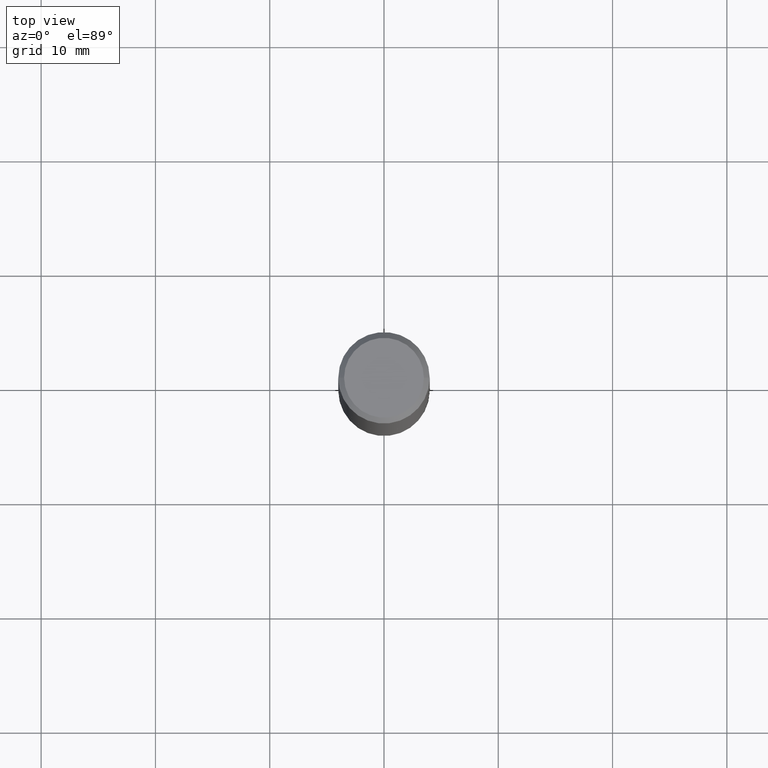
[diagram: clean part render]
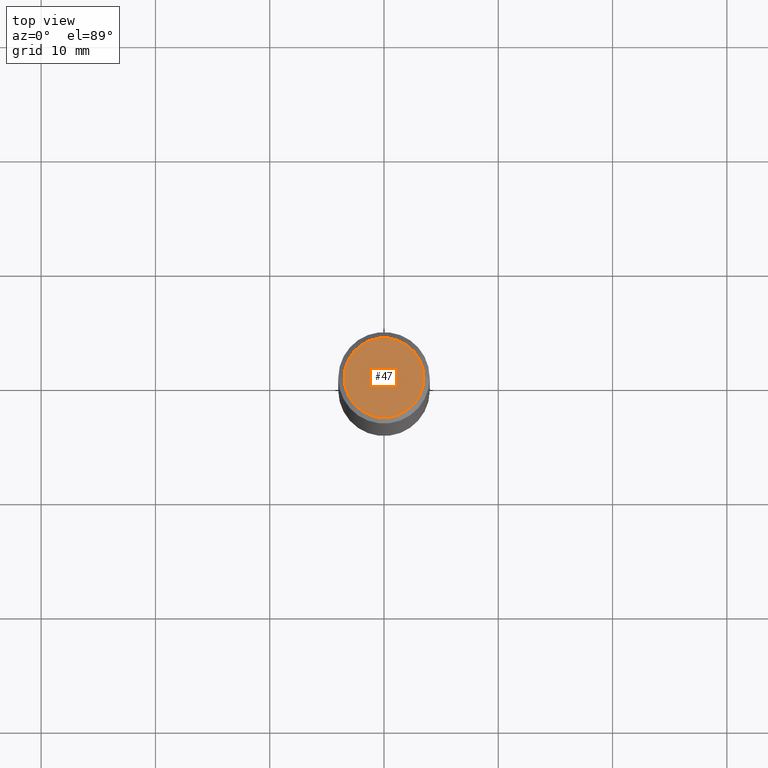
[diagram: same view with one face highlighted and labeled with its STEP entity id]
A machine part, top view. The second image highlights one B-rep face of the part: STEP entity #47.
In plain terms, the highlighted planar face has unit normal (0, -0, -1).
Its self-contained STEP definition (entity closure, byte-faithful):
#8 = EDGE_CURVE ( 'NONE', #208, #77, #256, .T. ) ;
#26 = AXIS2_PLACEMENT_3D ( 'NONE', #320, #286, #173 ) ;
#27 = DIRECTION ( 'NONE',  ( -2.445468806185136597E-29, 3.491481338843145583E-15, 1.000000000000000000 ) ) ;
#34 = CARTESIAN_POINT ( 'NONE',  ( -0.1374999999999998446, 9.950721815702915469E-16, 8.537024980193986277E-18 ) ) ;
#47 = ADVANCED_FACE ( 'NONE', ( #200 ), #203, .F. ) ;
#54 = CARTESIAN_POINT ( 'NONE',  ( -2.087702828670439639E-46, 2.980686340760894400E-32, 8.537024980200822558E-18 ) ) ;
#58 = ORIENTED_EDGE ( 'NONE', *, *, #128, .T. ) ;
#77 = VERTEX_POINT ( 'NONE', #34 ) ;
#103 = AXIS2_PLACEMENT_3D ( 'NONE', #187, #294, #300 ) ;
#128 = EDGE_CURVE ( 'NONE', #77, #208, #280, .T. ) ;
#133 = DIRECTION ( 'NONE',  ( 1.000000000000000000, -6.982962677686265922E-15, 4.876173381029105647E-29 ) ) ;
#173 = DIRECTION ( 'NONE',  ( -1.000000000000000000, 6.982962677686265922E-15, -4.876176775795935793E-29 ) ) ;
#187 = CARTESIAN_POINT ( 'NONE',  ( -2.087702828670439639E-46, 2.980686340760894400E-32, 8.537024980200822558E-18 ) ) ;
#200 = FACE_OUTER_BOUND ( 'NONE', #239, .T. ) ;
#203 = PLANE ( 'NONE',  #26 ) ;
#208 = VERTEX_POINT ( 'NONE', #356 ) ;
#239 = EDGE_LOOP ( 'NONE', ( #58, #324 ) ) ;
#256 = CIRCLE ( 'NONE', #285, 0.1374999999999998446 ) ;
#280 = CIRCLE ( 'NONE', #103, 0.1374999999999998446 ) ;
#285 = AXIS2_PLACEMENT_3D ( 'NONE', #54, #27, #133 ) ;
#286 = DIRECTION ( 'NONE',  ( 2.438088387897960049E-29, -3.491481338843145188E-15, -1.000000000000000000 ) ) ;
#294 = DIRECTION ( 'NONE',  ( -2.445468806185136597E-29, 3.491481338843145583E-15, 1.000000000000000000 ) ) ;
#300 = DIRECTION ( 'NONE',  ( 1.000000000000000000, -6.982962677686265922E-15, 4.876173381029105647E-29 ) ) ;
#320 = CARTESIAN_POINT ( 'NONE',  ( 9.601573681818602922E-16, 0.1374999999999998446, -4.758101716008314943E-16 ) ) ;
#324 = ORIENTED_EDGE ( 'NONE', *, *, #8, .T. ) ;
#356 = CARTESIAN_POINT ( 'NONE',  ( 0.1374999999999998446, -1.046838268059731308E-15, 8.537024980207840646E-18 ) ) ;